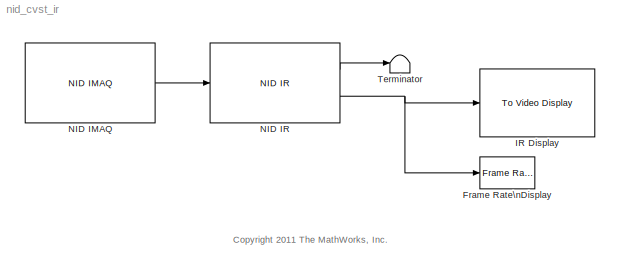
MODEL nid_cvst_ir
KIND model
BLOCK [Reference] Frame Rate\nDisplay  REF=vipsnks/Frame Rate\nDisplay
  DialogController = vipDDGCreate
  DialogControllerArgs = DataTag0
  Ports = [1]
  SID = 98
  SourceBlock = vipsnks/Frame Rate\nDisplay
  SourceType = Frame Rate Display
  UpdateRate = 10
BLOCK [Reference] IR Display  REF=vipsnks/To Video Display
  DialogControllerArgs = DataTag1
  OutputDevice = On-screen video monitor
  Ports = [1]
  SID = 81
  SourceBlock = vipsnks/To Video Display
  SourceType = To Video Display
  dataOrg = Column-major
  fullScreen = off
  imagePorts = One multidimensional signal
  inputType = Obsolete
  isWindowOpen = on
  openAtMdlStart = on
  saveWindowSize = off
  videoWindowHeight = 480
  videoWindowWidth = 639
  videoWindowX = 880
  videoWindowY = 60
BLOCK [Reference] NID IMAQ  REF=nid_lib/NID IMAQ
  Ports = [0, 1]
  SID = 78
  SourceBlock = nid_lib/NID IMAQ
  SourceType = NID IMAQ
  angle = 0
  angle_read = off
  imaq_depth = off
  imaq_image = off
  imaq_ir = on
  imaq_motion = off
  imaq_sample_time = 1/30
  imaq_skeleton = off
  mirror_image = off
  near_mode = off
  res_fps = VGA (640x480): 30 FPS
  view_point = off
BLOCK [Reference] NID IR  REF=nid_lib/NID IR
  Ports = [1, 2]
  SID = 83
  SourceBlock = nid_lib/NID IR
  SourceType = NID IR
  viewer = on
BLOCK [Terminator] Terminator
  SID = 90
ANNOTATION (root): <copyright redacted>
LINE NID IMAQ:1 -> NID IR:1
LINE NID IR:1 -> Terminator:1
NET NID IR:2 -> Frame Rate\nDisplay:1, IR Display:1
note: NET lines group one-source signal fan-out (src -> all destinations, sorted); 1:1 wires keep LINE
